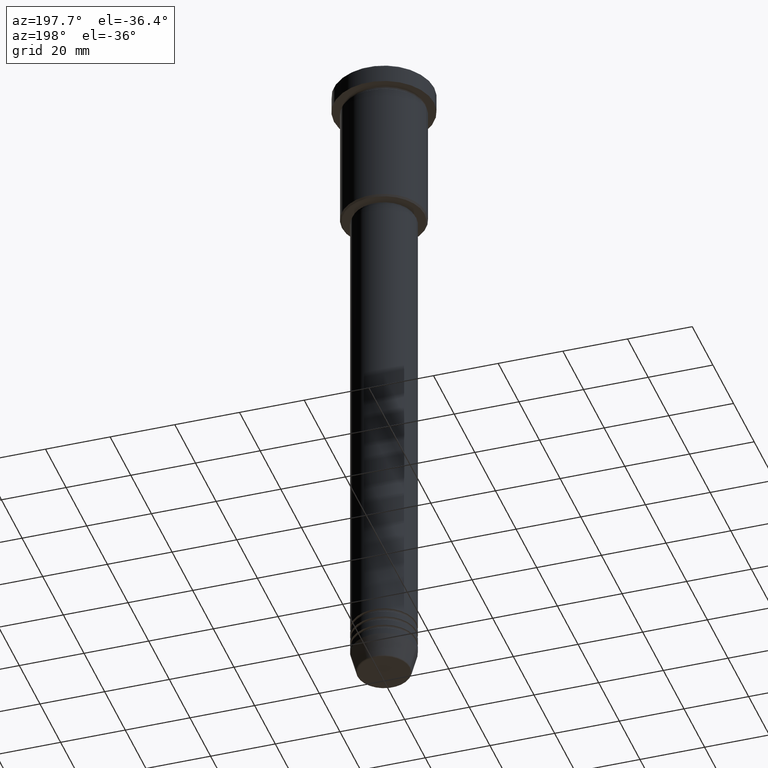
[diagram: clean part render]
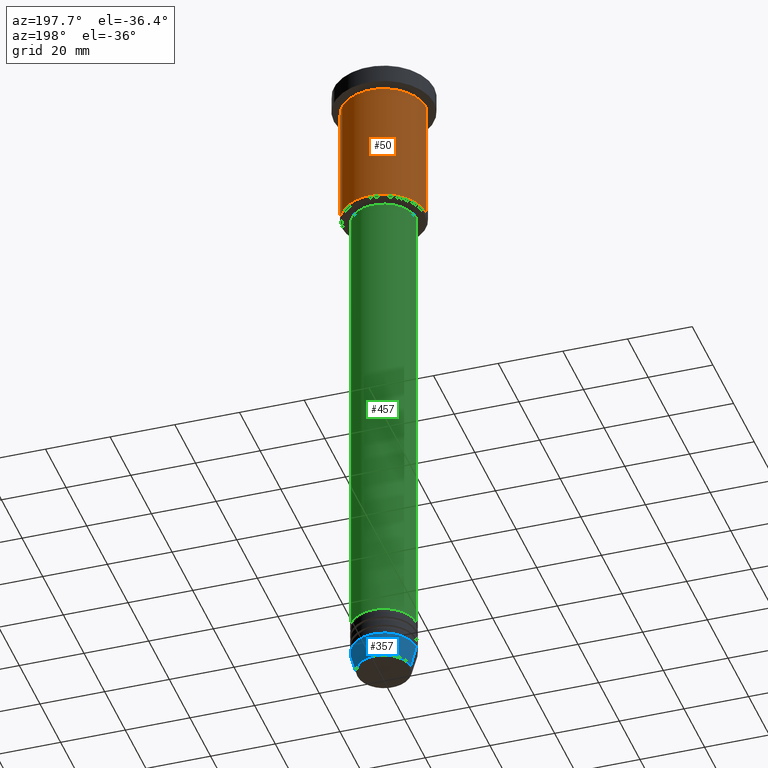
[diagram: same view with three faces highlighted in distinct colors, each labeled with its STEP entity id]
A machine part, auxiliary view with three faces highlighted in distinct colors.
Their STEP definitions:

[orange] entity #50 — the highlighted cylindrical surface (partial cylindrical patch) has radius 13 mm, axis along (-0, -0, 1).
#6 = AXIS2_PLACEMENT_3D ( 'NONE', #426, #705, #531 ) ;
#28 = EDGE_CURVE ( 'NONE', #1176, #803, #793, .T. ) ;
#50 = ADVANCED_FACE ( 'NONE', ( #719 ), #802, .T. ) ;
#59 = DIRECTION ( 'NONE',  ( 1.000000000000000000, 0.000000000000000000, 0.000000000000000000 ) ) ;
#121 = EDGE_CURVE ( 'NONE', #803, #998, #776, .T. ) ;
#389 = DIRECTION ( 'NONE',  ( -0.000000000000000000, -0.000000000000000000, 1.000000000000000000 ) ) ;
#418 = ORIENTED_EDGE ( 'NONE', *, *, #842, .T. ) ;
#420 = CARTESIAN_POINT ( 'NONE',  ( -13.00000000000000000, 1.592040838891559095E-15, -6.999999999999995559 ) ) ;
#426 = CARTESIAN_POINT ( 'NONE',  ( 0.000000000000000000, 0.000000000000000000, -45.49999999999998579 ) ) ;
#428 = CIRCLE ( 'NONE', #6, 13.00000000000000000 ) ;
#465 = VECTOR ( 'NONE', #518, 1000.000000000000000 ) ;
#491 = VERTEX_POINT ( 'NONE', #1067 ) ;
#518 = DIRECTION ( 'NONE',  ( -0.000000000000000000, -0.000000000000000000, 1.000000000000000000 ) ) ;
#527 = CARTESIAN_POINT ( 'NONE',  ( 0.000000000000000000, 0.000000000000000000, 0.000000000000000000 ) ) ;
#531 = DIRECTION ( 'NONE',  ( -1.000000000000000000, 0.000000000000000000, 0.000000000000000000 ) ) ;
#574 = EDGE_CURVE ( 'NONE', #1176, #491, #428, .T. ) ;
#618 = DIRECTION ( 'NONE',  ( -0.000000000000000000, -0.000000000000000000, 1.000000000000000000 ) ) ;
#687 = CARTESIAN_POINT ( 'NONE',  ( 13.00000000000000000, 0.000000000000000000, -6.999999999999995559 ) ) ;
#705 = DIRECTION ( 'NONE',  ( -0.000000000000000000, -0.000000000000000000, 1.000000000000000000 ) ) ;
#719 = FACE_OUTER_BOUND ( 'NONE', #771, .T. ) ;
#724 = DIRECTION ( 'NONE',  ( -0.000000000000000000, -0.000000000000000000, 1.000000000000000000 ) ) ;
#771 = EDGE_LOOP ( 'NONE', ( #1181, #418, #1164, #1003 ) ) ;
#776 = CIRCLE ( 'NONE', #1079, 13.00000000000000000 ) ;
#793 = LINE ( 'NONE', #816, #465 ) ;
#802 = CYLINDRICAL_SURFACE ( 'NONE', #1131, 13.00000000000000000 ) ;
#803 = VERTEX_POINT ( 'NONE', #687 ) ;
#816 = CARTESIAN_POINT ( 'NONE',  ( 13.00000000000000000, 0.000000000000000000, 0.000000000000000000 ) ) ;
#842 = EDGE_CURVE ( 'NONE', #491, #998, #1114, .T. ) ;
#905 = DIRECTION ( 'NONE',  ( 1.000000000000000000, 0.000000000000000000, 0.000000000000000000 ) ) ;
#926 = CARTESIAN_POINT ( 'NONE',  ( 13.00000000000000000, 0.000000000000000000, -45.49999999999998579 ) ) ;
#979 = CARTESIAN_POINT ( 'NONE',  ( 0.000000000000000000, 0.000000000000000000, -6.999999999999995559 ) ) ;
#998 = VERTEX_POINT ( 'NONE', #420 ) ;
#1003 = ORIENTED_EDGE ( 'NONE', *, *, #28, .F. ) ;
#1050 = CARTESIAN_POINT ( 'NONE',  ( -13.00000000000000000, 1.592040838891559095E-15, 0.000000000000000000 ) ) ;
#1067 = CARTESIAN_POINT ( 'NONE',  ( -13.00000000000000000, 1.592040838891559095E-15, -45.49999999999998579 ) ) ;
#1079 = AXIS2_PLACEMENT_3D ( 'NONE', #979, #618, #59 ) ;
#1083 = VECTOR ( 'NONE', #389, 1000.000000000000000 ) ;
#1114 = LINE ( 'NONE', #1050, #1083 ) ;
#1131 = AXIS2_PLACEMENT_3D ( 'NONE', #527, #724, #905 ) ;
#1164 = ORIENTED_EDGE ( 'NONE', *, *, #121, .F. ) ;
#1176 = VERTEX_POINT ( 'NONE', #926 ) ;
#1181 = ORIENTED_EDGE ( 'NONE', *, *, #574, .T. ) ;

[blue] entity #357 — the highlighted conical surface has half-angle 15 deg.
#37 = CARTESIAN_POINT ( 'NONE',  ( -8.223655072137198374, 1.115877042642912448E-15, -210.6294095225512706 ) ) ;
#38 = DIRECTION ( 'NONE',  ( 1.000000000000000000, 0.000000000000000000, 0.000000000000000000 ) ) ;
#43 = VECTOR ( 'NONE', #139, 1000.000000000000000 ) ;
#46 = LINE ( 'NONE', #361, #43 ) ;
#57 = DIRECTION ( 'NONE',  ( 1.000000000000000000, 0.000000000000000000, 0.000000000000000000 ) ) ;
#139 = DIRECTION ( 'NONE',  ( 0.2588190451025213501, 0.000000000000000000, 0.9659258262890680902 ) ) ;
#185 = VERTEX_POINT ( 'NONE', #913 ) ;
#213 = CIRCLE ( 'NONE', #526, 8.223655072137198374 ) ;
#250 = ORIENTED_EDGE ( 'NONE', *, *, #449, .T. ) ;
#293 = ORIENTED_EDGE ( 'NONE', *, *, #713, .T. ) ;
#335 = DIRECTION ( 'NONE',  ( -0.000000000000000000, -0.000000000000000000, 1.000000000000000000 ) ) ;
#357 = ADVANCED_FACE ( 'NONE', ( #595 ), #504, .T. ) ;
#361 = CARTESIAN_POINT ( 'NONE',  ( 10.00000000000000000, 0.000000000000000000, -204.0000000000000284 ) ) ;
#377 = CARTESIAN_POINT ( 'NONE',  ( 10.00000000000000000, 0.000000000000000000, -204.0000000000000284 ) ) ;
#431 = EDGE_LOOP ( 'NONE', ( #250, #293, #515, #592 ) ) ;
#446 = VECTOR ( 'NONE', #658, 1000.000000000000000 ) ;
#449 = EDGE_CURVE ( 'NONE', #185, #828, #213, .T. ) ;
#486 = AXIS2_PLACEMENT_3D ( 'NONE', #513, #335, #57 ) ;
#504 = CONICAL_SURFACE ( 'NONE', #1168, 10.00000000000000000, 0.2617993877991500740 ) ;
#508 = CARTESIAN_POINT ( 'NONE',  ( 0.000000000000000000, 0.000000000000000000, -210.6294095225512706 ) ) ;
#513 = CARTESIAN_POINT ( 'NONE',  ( 0.000000000000000000, 0.000000000000000000, -204.0000000000000284 ) ) ;
#515 = ORIENTED_EDGE ( 'NONE', *, *, #569, .F. ) ;
#526 = AXIS2_PLACEMENT_3D ( 'NONE', #508, #773, #1037 ) ;
#569 = EDGE_CURVE ( 'NONE', #695, #962, #930, .T. ) ;
#592 = ORIENTED_EDGE ( 'NONE', *, *, #959, .F. ) ;
#595 = FACE_OUTER_BOUND ( 'NONE', #431, .T. ) ;
#600 = DIRECTION ( 'NONE',  ( -0.000000000000000000, -0.000000000000000000, 1.000000000000000000 ) ) ;
#649 = LINE ( 'NONE', #653, #446 ) ;
#653 = CARTESIAN_POINT ( 'NONE',  ( -10.00000000000000000, 1.224646799147353256E-15, -204.0000000000000284 ) ) ;
#658 = DIRECTION ( 'NONE',  ( -0.2588190451025213501, 3.169619151431772337E-17, 0.9659258262890680902 ) ) ;
#695 = VERTEX_POINT ( 'NONE', #377 ) ;
#713 = EDGE_CURVE ( 'NONE', #828, #962, #649, .T. ) ;
#773 = DIRECTION ( 'NONE',  ( -0.000000000000000000, -0.000000000000000000, 1.000000000000000000 ) ) ;
#828 = VERTEX_POINT ( 'NONE', #37 ) ;
#875 = CARTESIAN_POINT ( 'NONE',  ( -10.00000000000000000, 1.224646799147353256E-15, -204.0000000000000284 ) ) ;
#913 = CARTESIAN_POINT ( 'NONE',  ( 8.223655072137198374, 0.000000000000000000, -210.6294095225512706 ) ) ;
#930 = CIRCLE ( 'NONE', #486, 10.00000000000000000 ) ;
#955 = CARTESIAN_POINT ( 'NONE',  ( 0.000000000000000000, 0.000000000000000000, -204.0000000000000284 ) ) ;
#959 = EDGE_CURVE ( 'NONE', #185, #695, #46, .T. ) ;
#962 = VERTEX_POINT ( 'NONE', #875 ) ;
#1037 = DIRECTION ( 'NONE',  ( 1.000000000000000000, 0.000000000000000000, 0.000000000000000000 ) ) ;
#1168 = AXIS2_PLACEMENT_3D ( 'NONE', #955, #600, #38 ) ;

[green] entity #457 — the highlighted cylindrical surface (edge-blend (fillet) strip) has radius 10 mm, axis along (-0, -0, 1).
#13 = VERTEX_POINT ( 'NONE', #1123 ) ;
#70 = DIRECTION ( 'NONE',  ( 1.000000000000000000, 0.000000000000000000, 0.000000000000000000 ) ) ;
#92 = LINE ( 'NONE', #359, #889 ) ;
#111 = ORIENTED_EDGE ( 'NONE', *, *, #267, .F. ) ;
#123 = DIRECTION ( 'NONE',  ( 1.000000000000000000, 0.000000000000000000, 0.000000000000000000 ) ) ;
#135 = EDGE_CURVE ( 'NONE', #220, #1014, #336, .T. ) ;
#220 = VERTEX_POINT ( 'NONE', #1023 ) ;
#234 = CARTESIAN_POINT ( 'NONE',  ( -10.00000000000000000, 1.224646799147353256E-15, -47.00000000000002132 ) ) ;
#267 = EDGE_CURVE ( 'NONE', #13, #933, #92, .T. ) ;
#270 = VECTOR ( 'NONE', #984, 1000.000000000000000 ) ;
#283 = EDGE_CURVE ( 'NONE', #933, #1014, #928, .T. ) ;
#303 = DIRECTION ( 'NONE',  ( -0.000000000000000000, -0.000000000000000000, 1.000000000000000000 ) ) ;
#309 = AXIS2_PLACEMENT_3D ( 'NONE', #781, #303, #123 ) ;
#336 = LINE ( 'NONE', #1073, #270 ) ;
#359 = CARTESIAN_POINT ( 'NONE',  ( 10.00000000000000000, 0.000000000000000000, 0.000000000000000000 ) ) ;
#375 = ORIENTED_EDGE ( 'NONE', *, *, #585, .T. ) ;
#397 = CYLINDRICAL_SURFACE ( 'NONE', #309, 10.00000000000000000 ) ;
#457 = ADVANCED_FACE ( 'NONE', ( #877 ), #397, .T. ) ;
#466 = ORIENTED_EDGE ( 'NONE', *, *, #283, .F. ) ;
#471 = DIRECTION ( 'NONE',  ( -0.000000000000000000, -0.000000000000000000, 1.000000000000000000 ) ) ;
#496 = ORIENTED_EDGE ( 'NONE', *, *, #135, .T. ) ;
#536 = DIRECTION ( 'NONE',  ( -0.000000000000000000, -0.000000000000000000, 1.000000000000000000 ) ) ;
#561 = AXIS2_PLACEMENT_3D ( 'NONE', #1110, #471, #1180 ) ;
#585 = EDGE_CURVE ( 'NONE', #13, #220, #911, .T. ) ;
#639 = CARTESIAN_POINT ( 'NONE',  ( 10.00000000000000000, 0.000000000000000000, -47.00000000000002132 ) ) ;
#717 = CARTESIAN_POINT ( 'NONE',  ( 0.000000000000000000, 0.000000000000000000, -195.0000000000000000 ) ) ;
#750 = DIRECTION ( 'NONE',  ( -0.000000000000000000, -0.000000000000000000, 1.000000000000000000 ) ) ;
#781 = CARTESIAN_POINT ( 'NONE',  ( 0.000000000000000000, 0.000000000000000000, 0.000000000000000000 ) ) ;
#877 = FACE_OUTER_BOUND ( 'NONE', #938, .T. ) ;
#889 = VECTOR ( 'NONE', #750, 1000.000000000000000 ) ;
#911 = CIRCLE ( 'NONE', #1080, 10.00000000000000000 ) ;
#928 = CIRCLE ( 'NONE', #561, 10.00000000000000000 ) ;
#933 = VERTEX_POINT ( 'NONE', #639 ) ;
#938 = EDGE_LOOP ( 'NONE', ( #375, #496, #466, #111 ) ) ;
#984 = DIRECTION ( 'NONE',  ( -0.000000000000000000, -0.000000000000000000, 1.000000000000000000 ) ) ;
#1014 = VERTEX_POINT ( 'NONE', #234 ) ;
#1023 = CARTESIAN_POINT ( 'NONE',  ( -10.00000000000000000, 1.224646799147353256E-15, -195.0000000000000000 ) ) ;
#1073 = CARTESIAN_POINT ( 'NONE',  ( -10.00000000000000000, 1.224646799147353256E-15, 0.000000000000000000 ) ) ;
#1080 = AXIS2_PLACEMENT_3D ( 'NONE', #717, #536, #70 ) ;
#1110 = CARTESIAN_POINT ( 'NONE',  ( 0.000000000000000000, 0.000000000000000000, -47.00000000000002132 ) ) ;
#1123 = CARTESIAN_POINT ( 'NONE',  ( 10.00000000000000000, 0.000000000000000000, -195.0000000000000000 ) ) ;
#1180 = DIRECTION ( 'NONE',  ( 1.000000000000000000, 0.000000000000000000, 0.000000000000000000 ) ) ;